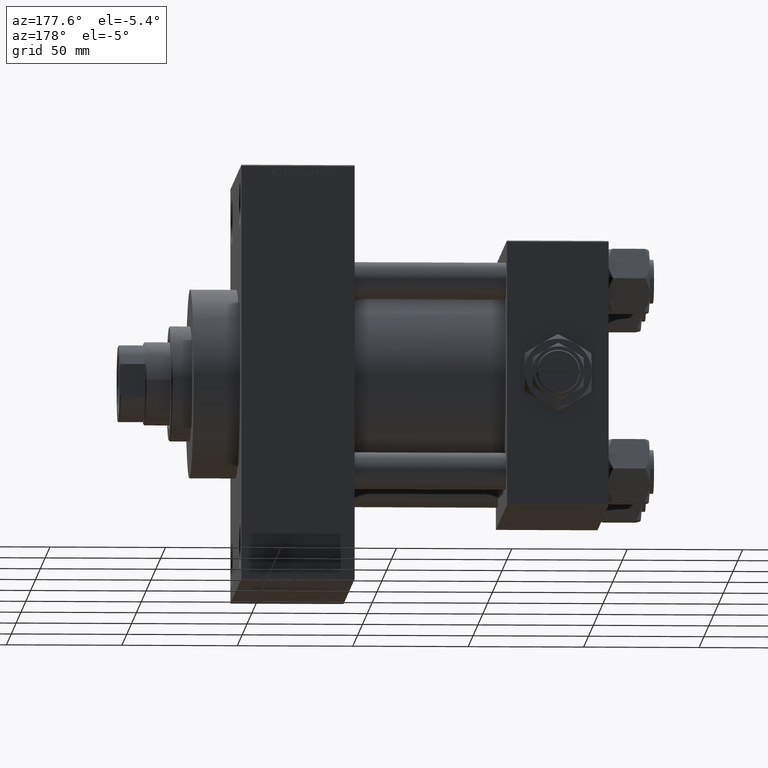
[diagram: clean part render]
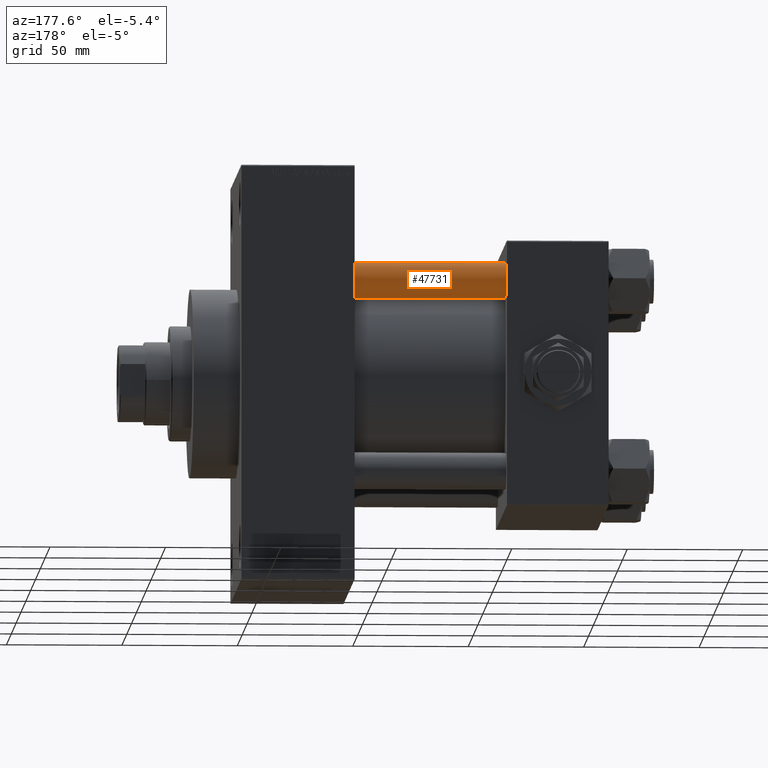
[diagram: same view with one face highlighted and labeled with its STEP entity id]
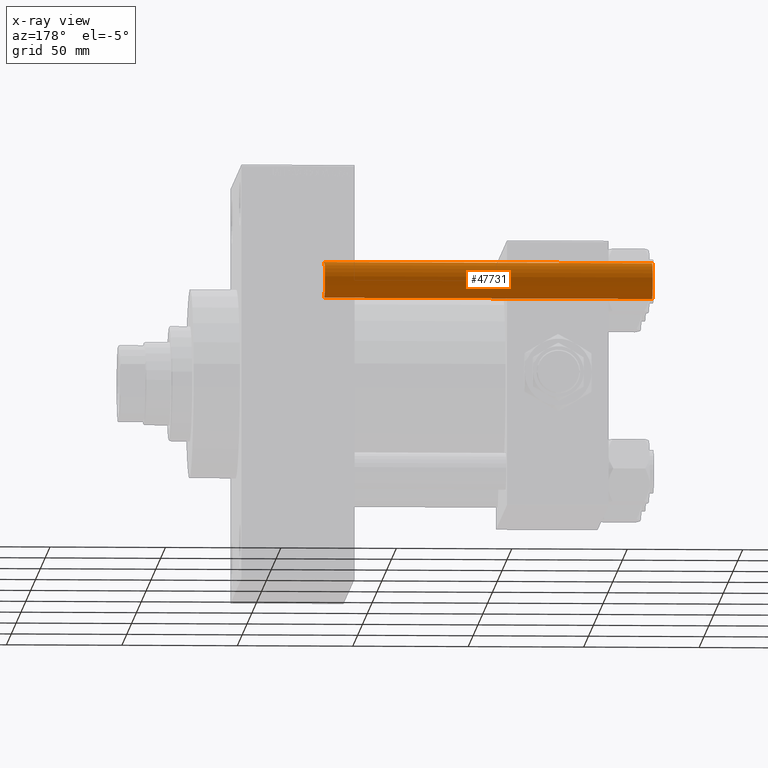
[diagram: x-ray of the same camera — body ghosted, the highlighted face saturated]
A machine part, auxiliary view. The second image highlights one B-rep face of the part: STEP entity #47731.
The next image is the same camera in x-ray: the body ghosted, the highlighted face saturated — about 0% of this face is hidden behind the body in this view.
In plain terms, the highlighted cylindrical surface (edge-blend (fillet) strip) has radius 8 mm, axis along (-1, -0, 0).
Its self-contained STEP definition (entity closure, byte-faithful):
#232 = DIRECTION ( 'NONE',  ( -0.000000000000000000, -0.000000000000000000, -1.000000000000000000 ) ) ;
#1502 = EDGE_CURVE ( 'NONE', #36449, #33931, #2183, .T. ) ;
#1887 = ORIENTED_EDGE ( 'NONE', *, *, #2271, .T. ) ;
#2183 = LINE ( 'NONE', #47034, #10349 ) ;
#2271 = EDGE_CURVE ( 'NONE', #33931, #38036, #27186, .T. ) ;
#7487 = CARTESIAN_POINT ( 'NONE',  ( -8.000000000000000000, 0.000000000000000000, 143.0000000000000000 ) ) ;
#10349 = VECTOR ( 'NONE', #24064, 1000.000000000000000 ) ;
#17928 = EDGE_CURVE ( 'NONE', #29255, #36449, #23336, .T. ) ;
#19152 = VECTOR ( 'NONE', #232, 1000.000000000000000 ) ;
#22984 = ORIENTED_EDGE ( 'NONE', *, *, #38670, .F. ) ;
#23336 = CIRCLE ( 'NONE', #28128, 8.000000000000000000 ) ;
#23337 = CARTESIAN_POINT ( 'NONE',  ( -8.000000000000000000, 0.000000000000000000, 142.4999999999999716 ) ) ;
#23463 = CYLINDRICAL_SURFACE ( 'NONE', #27453, 8.000000000000000000 ) ;
#24064 = DIRECTION ( 'NONE',  ( -0.000000000000000000, -0.000000000000000000, -1.000000000000000000 ) ) ;
#24126 = DIRECTION ( 'NONE',  ( -0.000000000000000000, -0.000000000000000000, 1.000000000000000000 ) ) ;
#27186 = CIRCLE ( 'NONE', #43920, 8.000000000000000000 ) ;
#27453 = AXIS2_PLACEMENT_3D ( 'NONE', #43425, #46930, #42932 ) ;
#27466 = FACE_OUTER_BOUND ( 'NONE', #48070, .T. ) ;
#28128 = AXIS2_PLACEMENT_3D ( 'NONE', #39883, #46655, #31686 ) ;
#29255 = VERTEX_POINT ( 'NONE', #23337 ) ;
#30261 = LINE ( 'NONE', #7487, #19152 ) ;
#31116 = CARTESIAN_POINT ( 'NONE',  ( 8.000000000000000000, 9.797174393178825657E-16, 0.4999999999999726885 ) ) ;
#31686 = DIRECTION ( 'NONE',  ( 1.000000000000000000, 0.000000000000000000, 0.000000000000000000 ) ) ;
#33931 = VERTEX_POINT ( 'NONE', #31116 ) ;
#35501 = ORIENTED_EDGE ( 'NONE', *, *, #1502, .T. ) ;
#36449 = VERTEX_POINT ( 'NONE', #44139 ) ;
#38036 = VERTEX_POINT ( 'NONE', #45650 ) ;
#38670 = EDGE_CURVE ( 'NONE', #29255, #38036, #30261, .T. ) ;
#39883 = CARTESIAN_POINT ( 'NONE',  ( 0.000000000000000000, 0.000000000000000000, 142.4999999999999716 ) ) ;
#42149 = ORIENTED_EDGE ( 'NONE', *, *, #17928, .T. ) ;
#42932 = DIRECTION ( 'NONE',  ( -1.000000000000000000, 0.000000000000000000, 0.000000000000000000 ) ) ;
#43425 = CARTESIAN_POINT ( 'NONE',  ( 0.000000000000000000, 0.000000000000000000, 143.0000000000000000 ) ) ;
#43587 = CARTESIAN_POINT ( 'NONE',  ( 0.000000000000000000, 0.000000000000000000, 0.4999999999999726885 ) ) ;
#43920 = AXIS2_PLACEMENT_3D ( 'NONE', #43587, #24126, #46849 ) ;
#44139 = CARTESIAN_POINT ( 'NONE',  ( 8.000000000000000000, 9.797174393178825657E-16, 142.4999999999999716 ) ) ;
#45650 = CARTESIAN_POINT ( 'NONE',  ( -8.000000000000000000, 0.000000000000000000, 0.4999999999999726885 ) ) ;
#46655 = DIRECTION ( 'NONE',  ( 0.000000000000000000, 0.000000000000000000, -1.000000000000000000 ) ) ;
#46849 = DIRECTION ( 'NONE',  ( 1.000000000000000000, 0.000000000000000000, 0.000000000000000000 ) ) ;
#46930 = DIRECTION ( 'NONE',  ( -0.000000000000000000, -0.000000000000000000, -1.000000000000000000 ) ) ;
#47034 = CARTESIAN_POINT ( 'NONE',  ( 8.000000000000000000, 9.797174393178825657E-16, 143.0000000000000000 ) ) ;
#47731 = ADVANCED_FACE ( 'NONE', ( #27466 ), #23463, .T. ) ;
#48070 = EDGE_LOOP ( 'NONE', ( #42149, #35501, #1887, #22984 ) ) ;